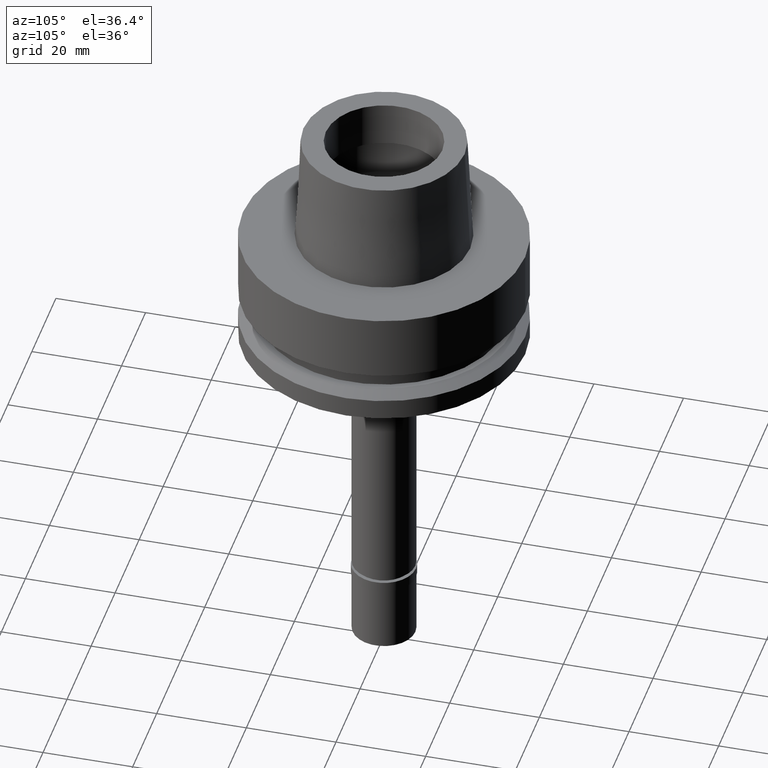
[diagram: clean part render]
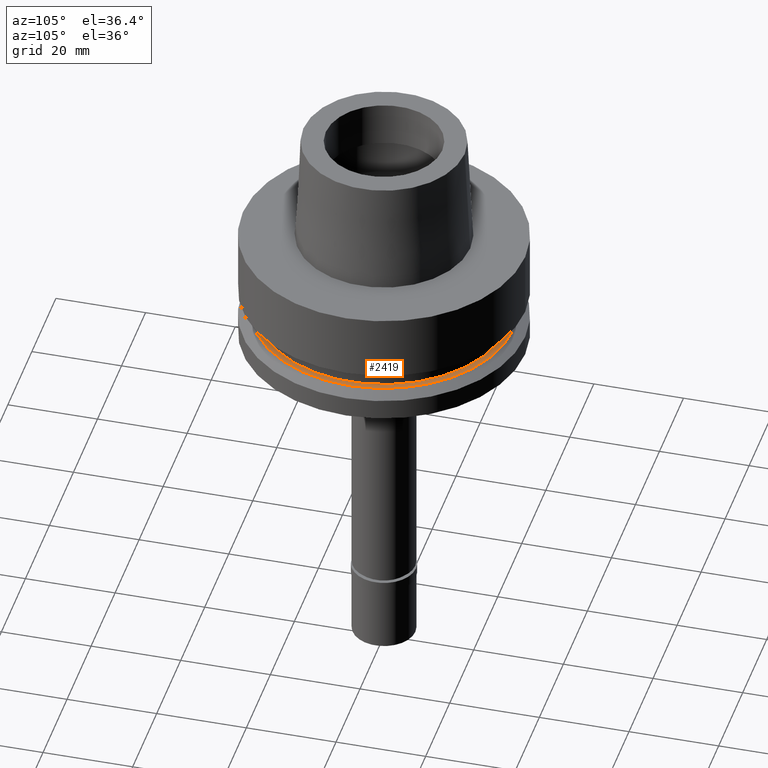
[diagram: same view with one face highlighted and labeled with its STEP entity id]
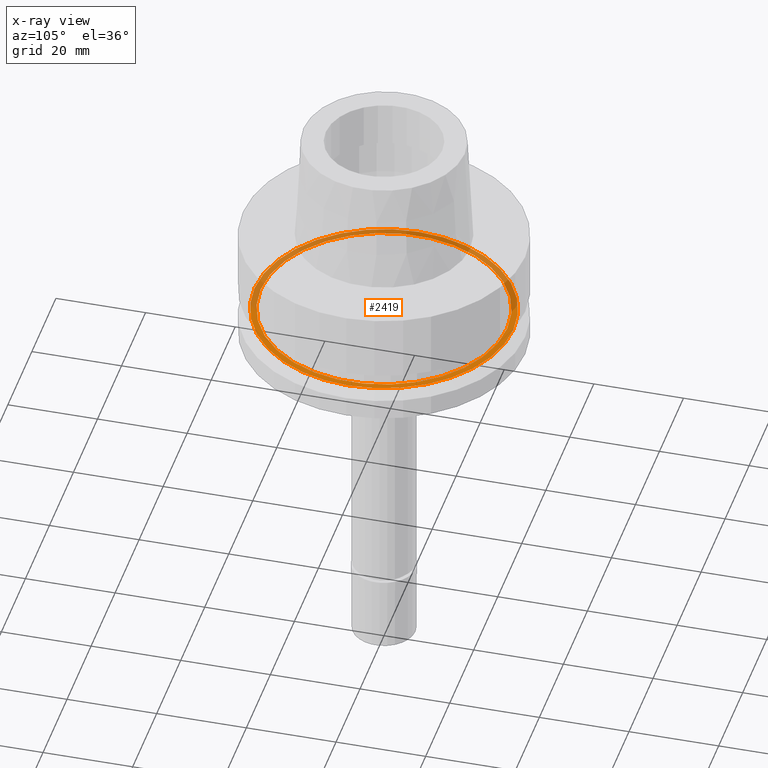
[diagram: x-ray of the same camera — body ghosted, the highlighted face saturated]
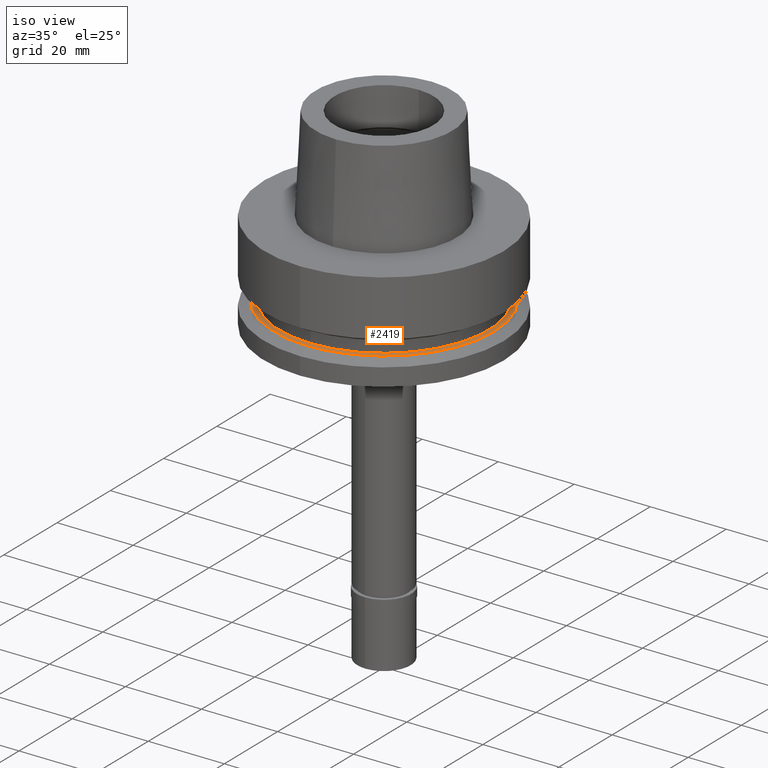
[diagram: same view with one face highlighted and labeled with its STEP entity id]
A machine part, auxiliary view. The second image highlights one B-rep face of the part: STEP entity #2419.
The next image is the same camera in x-ray: the body ghosted, the highlighted face saturated — about 50% of this face is hidden behind the body in this view.
A second angle (iso view) of the same face is appended — the face is thin or edge-on in the first view.
In plain terms, the highlighted planar face has unit normal (0, 0, 1).
Its self-contained STEP definition (entity closure, byte-faithful):
#180 = CIRCLE ( 'NONE', #2795, 28.89759526419000224 ) ;
#258 = DIRECTION ( 'NONE',  ( 1.000000000000000000, 0.0000000000000000000, 0.0000000000000000000 ) ) ;
#289 = CARTESIAN_POINT ( 'NONE',  ( 0.0000000000000000000, 0.0000000000000000000, -19.87500000000000000 ) ) ;
#445 = CARTESIAN_POINT ( 'NONE',  ( 0.0000000000000000000, 0.0000000000000000000, -19.87500000000000000 ) ) ;
#464 = DIRECTION ( 'NONE',  ( 0.0000000000000000000, 0.0000000000000000000, 1.000000000000000000 ) ) ;
#500 = VERTEX_POINT ( 'NONE', #2328 ) ;
#646 = CARTESIAN_POINT ( 'NONE',  ( 0.0000000000000000000, 28.89759526419000224, -19.87500000000000000 ) ) ;
#664 = AXIS2_PLACEMENT_3D ( 'NONE', #1794, #1119, #738 ) ;
#712 = CIRCLE ( 'NONE', #1565, 27.50000000000000000 ) ;
#738 = DIRECTION ( 'NONE',  ( 0.0000000000000000000, 1.000000000000000000, 0.0000000000000000000 ) ) ;
#937 = EDGE_LOOP ( 'NONE', ( #2710, #1679 ) ) ;
#938 = CIRCLE ( 'NONE', #664, 28.89759526419000224 ) ;
#966 = EDGE_LOOP ( 'NONE', ( #1660, #1478 ) ) ;
#1110 = EDGE_CURVE ( 'NONE', #2539, #500, #2055, .T. ) ;
#1119 = DIRECTION ( 'NONE',  ( 0.0000000000000000000, 0.0000000000000000000, -1.000000000000000000 ) ) ;
#1127 = DIRECTION ( 'NONE',  ( 0.0000000000000000000, 0.0000000000000000000, 1.000000000000000000 ) ) ;
#1151 = AXIS2_PLACEMENT_3D ( 'NONE', #445, #1127, #1315 ) ;
#1279 = DIRECTION ( 'NONE',  ( 0.0000000000000000000, 0.0000000000000000000, 1.000000000000000000 ) ) ;
#1291 = DIRECTION ( 'NONE',  ( 0.0000000000000000000, 1.000000000000000000, 0.0000000000000000000 ) ) ;
#1315 = DIRECTION ( 'NONE',  ( 0.0000000000000000000, -1.000000000000000000, 0.0000000000000000000 ) ) ;
#1391 = CARTESIAN_POINT ( 'NONE',  ( 0.0000000000000000000, -27.50000000000000000, -19.87500000000000000 ) ) ;
#1455 = CARTESIAN_POINT ( 'NONE',  ( 0.0000000000000000000, 0.0000000000000000000, -19.87500000000000000 ) ) ;
#1478 = ORIENTED_EDGE ( 'NONE', *, *, #2600, .F. ) ;
#1552 = VERTEX_POINT ( 'NONE', #2378 ) ;
#1565 = AXIS2_PLACEMENT_3D ( 'NONE', #1725, #1279, #1291 ) ;
#1660 = ORIENTED_EDGE ( 'NONE', *, *, #2434, .F. ) ;
#1662 = DIRECTION ( 'NONE',  ( 0.0000000000000000000, -1.000000000000000000, 0.0000000000000000000 ) ) ;
#1679 = ORIENTED_EDGE ( 'NONE', *, *, #1110, .F. ) ;
#1725 = CARTESIAN_POINT ( 'NONE',  ( 0.0000000000000000000, 0.0000000000000000000, -19.87500000000000000 ) ) ;
#1753 = FACE_OUTER_BOUND ( 'NONE', #966, .T. ) ;
#1794 = CARTESIAN_POINT ( 'NONE',  ( 0.0000000000000000000, 0.0000000000000000000, -19.87500000000000000 ) ) ;
#1960 = PLANE ( 'NONE',  #2253 ) ;
#2043 = VERTEX_POINT ( 'NONE', #646 ) ;
#2055 = CIRCLE ( 'NONE', #1151, 27.50000000000000000 ) ;
#2124 = DIRECTION ( 'NONE',  ( 0.0000000000000000000, 0.0000000000000000000, -1.000000000000000000 ) ) ;
#2253 = AXIS2_PLACEMENT_3D ( 'NONE', #289, #464, #258 ) ;
#2328 = CARTESIAN_POINT ( 'NONE',  ( 0.0000000000000000000, 27.50000000000000000, -19.87500000000000000 ) ) ;
#2378 = CARTESIAN_POINT ( 'NONE',  ( 0.0000000000000000000, -28.89759526419000224, -19.87500000000000000 ) ) ;
#2394 = FACE_BOUND ( 'NONE', #937, .T. ) ;
#2419 = ADVANCED_FACE ( 'NONE', ( #1753, #2394 ), #1960, .T. ) ;
#2434 = EDGE_CURVE ( 'NONE', #2043, #1552, #938, .T. ) ;
#2539 = VERTEX_POINT ( 'NONE', #1391 ) ;
#2600 = EDGE_CURVE ( 'NONE', #1552, #2043, #180, .T. ) ;
#2710 = ORIENTED_EDGE ( 'NONE', *, *, #2781, .F. ) ;
#2781 = EDGE_CURVE ( 'NONE', #500, #2539, #712, .T. ) ;
#2795 = AXIS2_PLACEMENT_3D ( 'NONE', #1455, #2124, #1662 ) ;